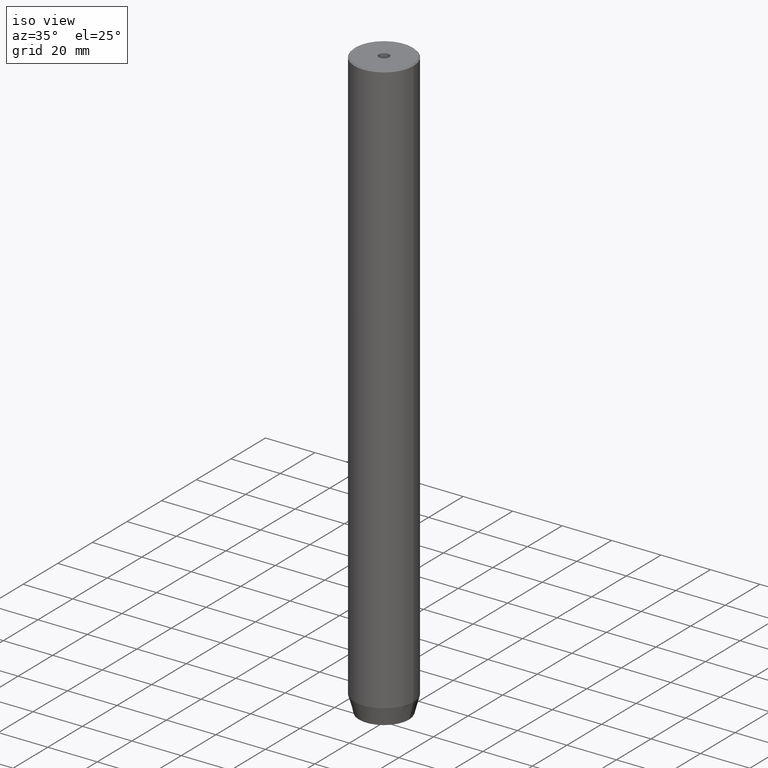
[diagram: clean part render]
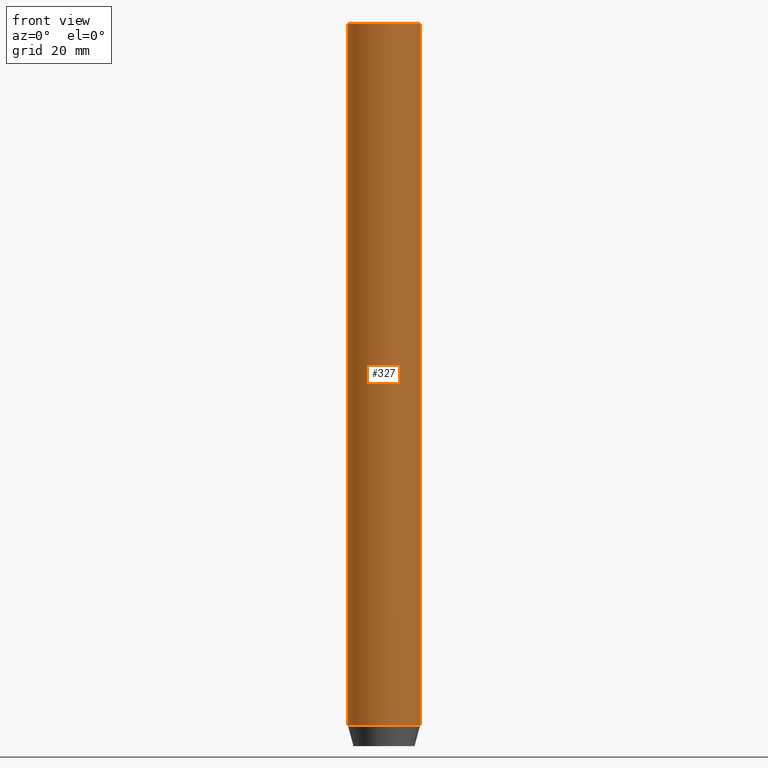
[diagram: tour spotlight — one face highlighted and labeled with its STEP entity id]
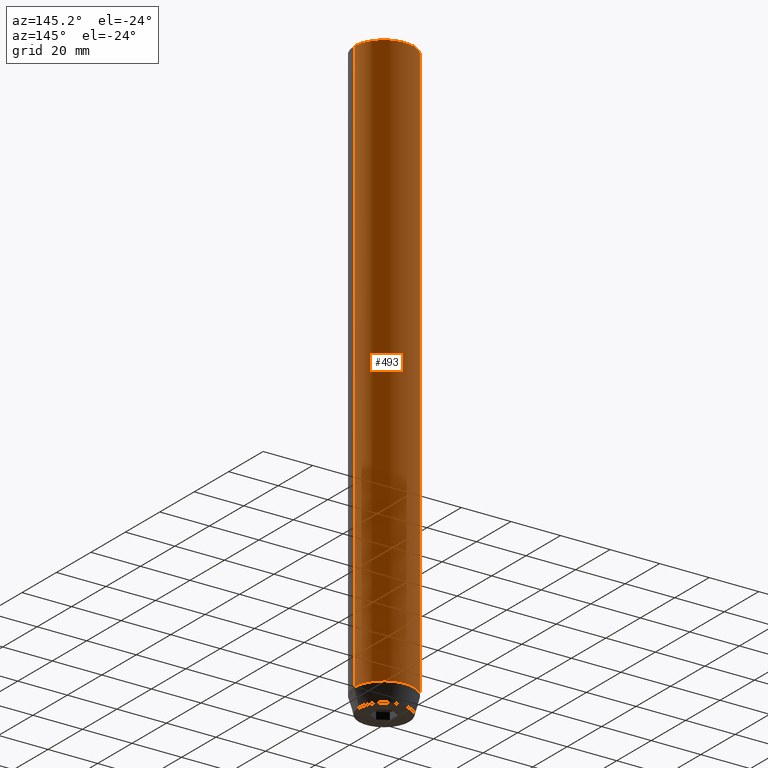
[diagram: tour spotlight — one face highlighted and labeled with its STEP entity id]
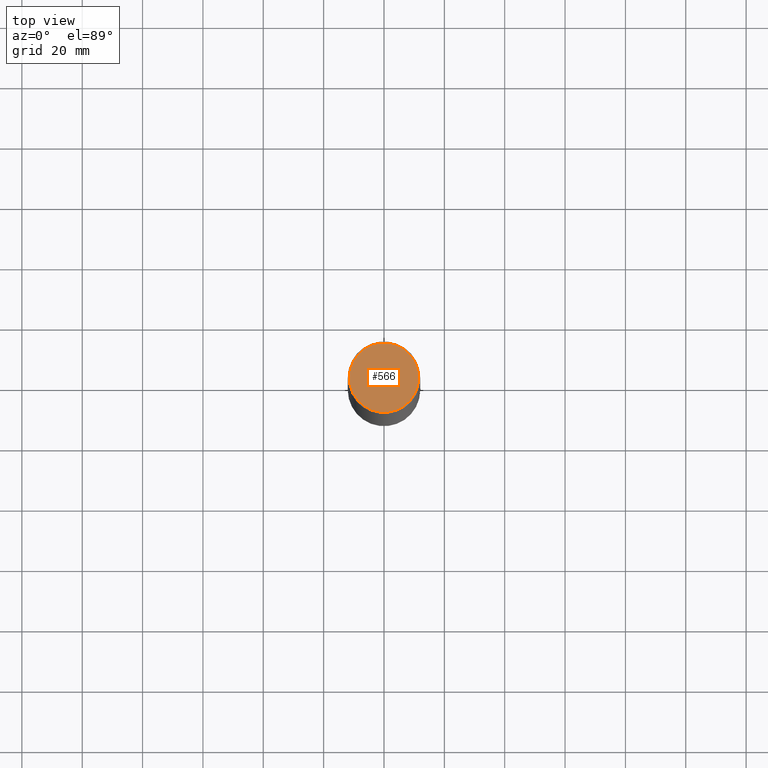
[diagram: tour spotlight — one face highlighted and labeled with its STEP entity id]
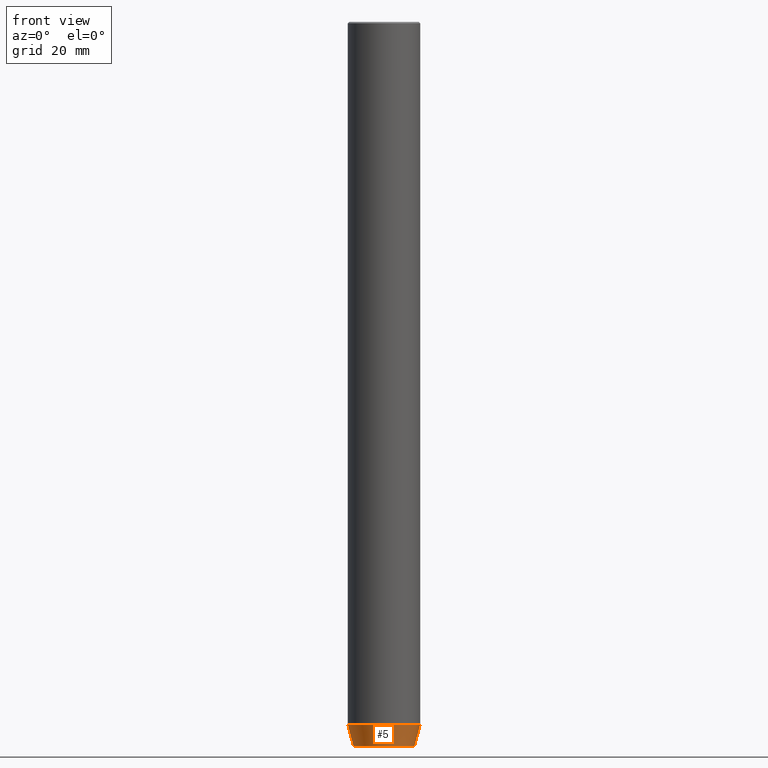
[diagram: tour spotlight — one face highlighted and labeled with its STEP entity id]
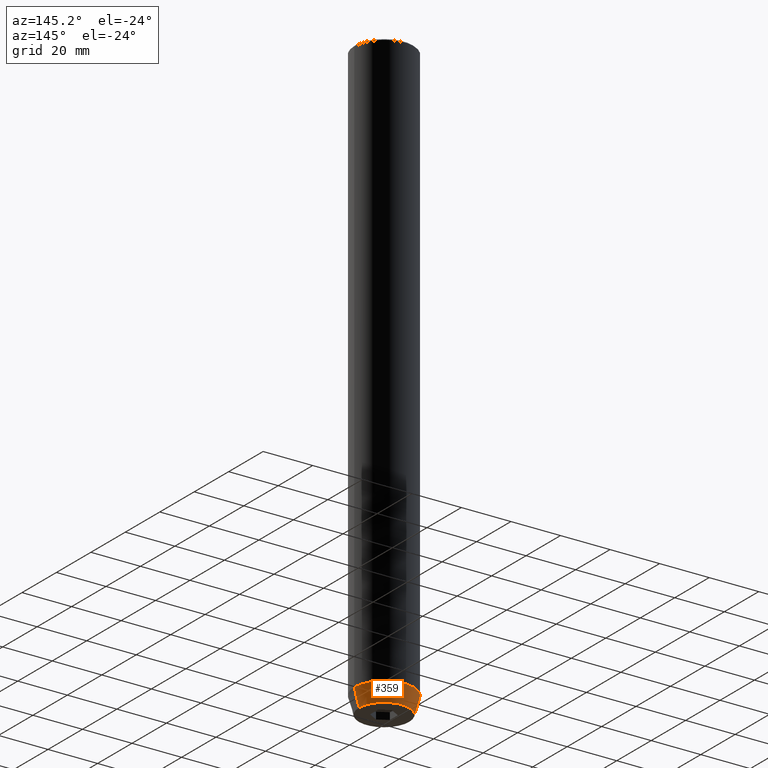
[diagram: tour spotlight — one face highlighted and labeled with its STEP entity id]
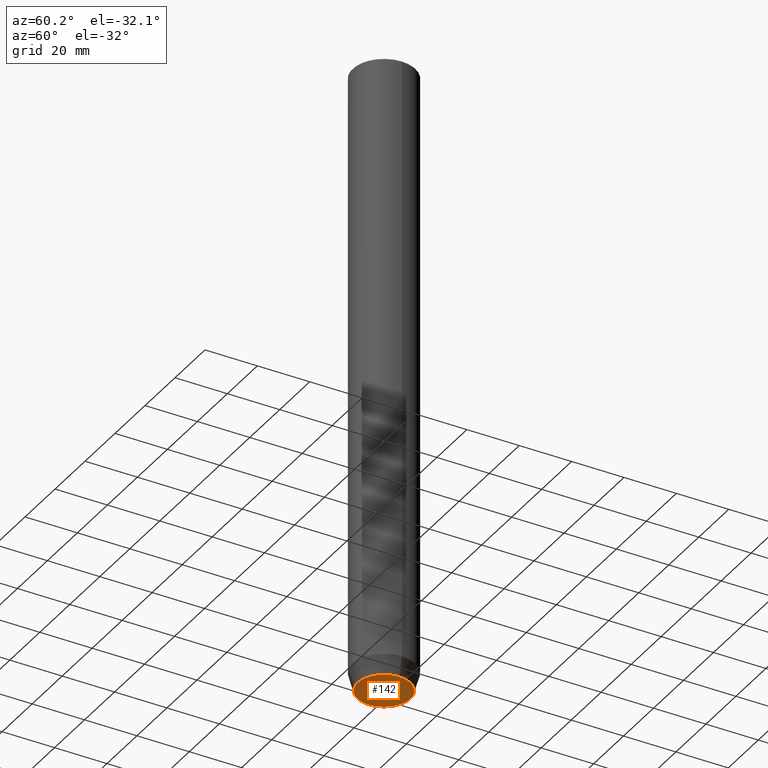
[diagram: tour spotlight — one face highlighted and labeled with its STEP entity id]
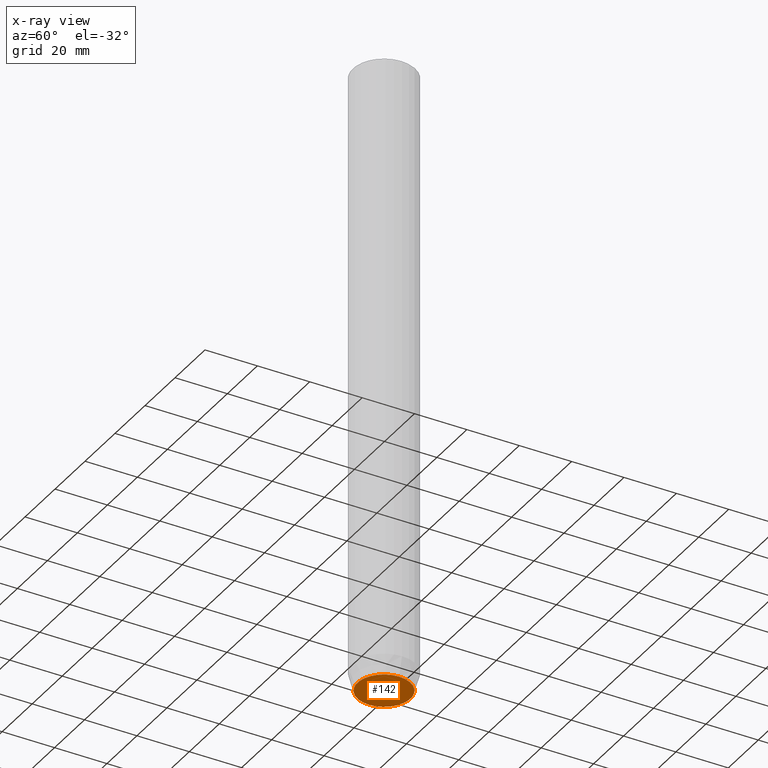
[diagram: x-ray of the same camera — body ghosted, this tour face saturated]
A machine part: a face-by-face anatomy tour. The part has 19 B-rep faces; the first image is the clean iso view, then the 6 largest visible faces are spotlighted one at a time (largest first), each with its STEP entity span.

Face 1 — front view, entity #327. In plain terms, the highlighted cylindrical surface (edge-blend (fillet) strip) has radius 12 mm, axis along (-0, -0, 1).
Definition (entity closure, byte-faithful):
#4 = ORIENTED_EDGE ( 'NONE', *, *, #515, .T. ) ;
#28 = LINE ( 'NONE', #341, #77 ) ;
#38 = CARTESIAN_POINT ( 'NONE',  ( -12.00000000000000000, 1.469576158976823947E-15, -232.9999999999999716 ) ) ;
#50 = EDGE_CURVE ( 'NONE', #273, #210, #28, .T. ) ;
#71 = LINE ( 'NONE', #262, #384 ) ;
#77 = VECTOR ( 'NONE', #293, 1000.000000000000000 ) ;
#80 = DIRECTION ( 'NONE',  ( 1.000000000000000000, 0.000000000000000000, 0.000000000000000000 ) ) ;
#106 = CIRCLE ( 'NONE', #568, 12.00000000000000000 ) ;
#172 = ORIENTED_EDGE ( 'NONE', *, *, #282, .F. ) ;
#210 = VERTEX_POINT ( 'NONE', #216 ) ;
#216 = CARTESIAN_POINT ( 'NONE',  ( 12.00000000000000000, 0.000000000000000000, -0.4999999999999779066 ) ) ;
#230 = ORIENTED_EDGE ( 'NONE', *, *, #559, .T. ) ;
#249 = VERTEX_POINT ( 'NONE', #38 ) ;
#262 = CARTESIAN_POINT ( 'NONE',  ( -12.00000000000000000, 1.469576158976823947E-15, 0.000000000000000000 ) ) ;
#272 = CARTESIAN_POINT ( 'NONE',  ( -12.00000000000000000, 1.469576158976823947E-15, -0.4999999999999779066 ) ) ;
#273 = VERTEX_POINT ( 'NONE', #530 ) ;
#274 = CARTESIAN_POINT ( 'NONE',  ( 0.000000000000000000, 0.000000000000000000, -0.4999999999999779066 ) ) ;
#282 = EDGE_CURVE ( 'NONE', #249, #475, #71, .T. ) ;
#288 = ORIENTED_EDGE ( 'NONE', *, *, #50, .T. ) ;
#293 = DIRECTION ( 'NONE',  ( -0.000000000000000000, -0.000000000000000000, 1.000000000000000000 ) ) ;
#298 = CARTESIAN_POINT ( 'NONE',  ( 0.000000000000000000, 0.000000000000000000, -232.9999999999999716 ) ) ;
#301 = AXIS2_PLACEMENT_3D ( 'NONE', #298, #314, #80 ) ;
#304 = DIRECTION ( 'NONE',  ( 1.000000000000000000, 0.000000000000000000, 0.000000000000000000 ) ) ;
#314 = DIRECTION ( 'NONE',  ( -0.000000000000000000, -0.000000000000000000, 1.000000000000000000 ) ) ;
#327 = ADVANCED_FACE ( 'NONE', ( #546 ), #390, .T. ) ;
#332 = EDGE_LOOP ( 'NONE', ( #172, #230, #288, #4 ) ) ;
#341 = CARTESIAN_POINT ( 'NONE',  ( 12.00000000000000000, 0.000000000000000000, 0.000000000000000000 ) ) ;
#357 = DIRECTION ( 'NONE',  ( 0.000000000000000000, 0.000000000000000000, -1.000000000000000000 ) ) ;
#384 = VECTOR ( 'NONE', #400, 1000.000000000000000 ) ;
#385 = CIRCLE ( 'NONE', #301, 12.00000000000000000 ) ;
#390 = CYLINDRICAL_SURFACE ( 'NONE', #460, 12.00000000000000000 ) ;
#400 = DIRECTION ( 'NONE',  ( -0.000000000000000000, -0.000000000000000000, 1.000000000000000000 ) ) ;
#460 = AXIS2_PLACEMENT_3D ( 'NONE', #532, #539, #304 ) ;
#475 = VERTEX_POINT ( 'NONE', #272 ) ;
#484 = DIRECTION ( 'NONE',  ( 1.000000000000000000, 0.000000000000000000, 0.000000000000000000 ) ) ;
#515 = EDGE_CURVE ( 'NONE', #210, #475, #106, .T. ) ;
#530 = CARTESIAN_POINT ( 'NONE',  ( 12.00000000000000000, 0.000000000000000000, -232.9999999999999716 ) ) ;
#532 = CARTESIAN_POINT ( 'NONE',  ( 0.000000000000000000, 0.000000000000000000, 0.000000000000000000 ) ) ;
#539 = DIRECTION ( 'NONE',  ( -0.000000000000000000, -0.000000000000000000, 1.000000000000000000 ) ) ;
#546 = FACE_OUTER_BOUND ( 'NONE', #332, .T. ) ;
#559 = EDGE_CURVE ( 'NONE', #249, #273, #385, .T. ) ;
#568 = AXIS2_PLACEMENT_3D ( 'NONE', #274, #357, #484 ) ;

Face 2 — auxiliary view, entity #493. In plain terms, the highlighted cylindrical surface (edge-blend (fillet) strip) has radius 12 mm, axis along (-0, -0, 1).
Definition (entity closure, byte-faithful):
#6 = DIRECTION ( 'NONE',  ( 1.000000000000000000, 0.000000000000000000, 0.000000000000000000 ) ) ;
#28 = LINE ( 'NONE', #341, #77 ) ;
#38 = CARTESIAN_POINT ( 'NONE',  ( -12.00000000000000000, 1.469576158976823947E-15, -232.9999999999999716 ) ) ;
#41 = AXIS2_PLACEMENT_3D ( 'NONE', #88, #232, #187 ) ;
#47 = CIRCLE ( 'NONE', #300, 12.00000000000000000 ) ;
#50 = EDGE_CURVE ( 'NONE', #273, #210, #28, .T. ) ;
#58 = ORIENTED_EDGE ( 'NONE', *, *, #282, .T. ) ;
#66 = EDGE_CURVE ( 'NONE', #273, #249, #303, .T. ) ;
#71 = LINE ( 'NONE', #262, #384 ) ;
#77 = VECTOR ( 'NONE', #293, 1000.000000000000000 ) ;
#88 = CARTESIAN_POINT ( 'NONE',  ( 0.000000000000000000, 0.000000000000000000, 0.000000000000000000 ) ) ;
#112 = ORIENTED_EDGE ( 'NONE', *, *, #50, .F. ) ;
#115 = DIRECTION ( 'NONE',  ( -0.000000000000000000, -0.000000000000000000, 1.000000000000000000 ) ) ;
#129 = CYLINDRICAL_SURFACE ( 'NONE', #41, 12.00000000000000000 ) ;
#157 = EDGE_LOOP ( 'NONE', ( #544, #58, #167, #112 ) ) ;
#167 = ORIENTED_EDGE ( 'NONE', *, *, #409, .T. ) ;
#186 = CARTESIAN_POINT ( 'NONE',  ( 0.000000000000000000, 0.000000000000000000, -0.4999999999999779066 ) ) ;
#187 = DIRECTION ( 'NONE',  ( 1.000000000000000000, 0.000000000000000000, 0.000000000000000000 ) ) ;
#210 = VERTEX_POINT ( 'NONE', #216 ) ;
#216 = CARTESIAN_POINT ( 'NONE',  ( 12.00000000000000000, 0.000000000000000000, -0.4999999999999779066 ) ) ;
#224 = DIRECTION ( 'NONE',  ( 1.000000000000000000, 0.000000000000000000, 0.000000000000000000 ) ) ;
#232 = DIRECTION ( 'NONE',  ( -0.000000000000000000, -0.000000000000000000, 1.000000000000000000 ) ) ;
#249 = VERTEX_POINT ( 'NONE', #38 ) ;
#262 = CARTESIAN_POINT ( 'NONE',  ( -12.00000000000000000, 1.469576158976823947E-15, 0.000000000000000000 ) ) ;
#272 = CARTESIAN_POINT ( 'NONE',  ( -12.00000000000000000, 1.469576158976823947E-15, -0.4999999999999779066 ) ) ;
#273 = VERTEX_POINT ( 'NONE', #530 ) ;
#282 = EDGE_CURVE ( 'NONE', #249, #475, #71, .T. ) ;
#293 = DIRECTION ( 'NONE',  ( -0.000000000000000000, -0.000000000000000000, 1.000000000000000000 ) ) ;
#300 = AXIS2_PLACEMENT_3D ( 'NONE', #186, #311, #6 ) ;
#303 = CIRCLE ( 'NONE', #538, 12.00000000000000000 ) ;
#311 = DIRECTION ( 'NONE',  ( 0.000000000000000000, 0.000000000000000000, -1.000000000000000000 ) ) ;
#341 = CARTESIAN_POINT ( 'NONE',  ( 12.00000000000000000, 0.000000000000000000, 0.000000000000000000 ) ) ;
#384 = VECTOR ( 'NONE', #400, 1000.000000000000000 ) ;
#400 = DIRECTION ( 'NONE',  ( -0.000000000000000000, -0.000000000000000000, 1.000000000000000000 ) ) ;
#409 = EDGE_CURVE ( 'NONE', #475, #210, #47, .T. ) ;
#475 = VERTEX_POINT ( 'NONE', #272 ) ;
#493 = ADVANCED_FACE ( 'NONE', ( #585 ), #129, .T. ) ;
#529 = CARTESIAN_POINT ( 'NONE',  ( 0.000000000000000000, 0.000000000000000000, -232.9999999999999716 ) ) ;
#530 = CARTESIAN_POINT ( 'NONE',  ( 12.00000000000000000, 0.000000000000000000, -232.9999999999999716 ) ) ;
#538 = AXIS2_PLACEMENT_3D ( 'NONE', #529, #115, #224 ) ;
#544 = ORIENTED_EDGE ( 'NONE', *, *, #66, .T. ) ;
#585 = FACE_OUTER_BOUND ( 'NONE', #157, .T. ) ;

Face 3 — top view, entity #566. In plain terms, the highlighted planar face has unit normal (0, -0, 1).
Definition (entity closure, byte-faithful):
#1 = DIRECTION ( 'NONE',  ( 1.000000000000000000, 0.000000000000000000, 0.000000000000000000 ) ) ;
#22 = ORIENTED_EDGE ( 'NONE', *, *, #466, .T. ) ;
#24 = ORIENTED_EDGE ( 'NONE', *, *, #542, .F. ) ;
#31 = DIRECTION ( 'NONE',  ( 0.000000000000000000, -0.000000000000000000, 1.000000000000000000 ) ) ;
#35 = DIRECTION ( 'NONE',  ( -0.000000000000000000, -0.000000000000000000, 1.000000000000000000 ) ) ;
#43 = CARTESIAN_POINT ( 'NONE',  ( 0.000000000000000000, 0.000000000000000000, -1.990051048614449116E-16 ) ) ;
#83 = CARTESIAN_POINT ( 'NONE',  ( 0.000000000000000000, 0.000000000000000000, 0.000000000000000000 ) ) ;
#107 = AXIS2_PLACEMENT_3D ( 'NONE', #43, #404, #180 ) ;
#119 = CIRCLE ( 'NONE', #535, 11.50000000000000888 ) ;
#120 = CARTESIAN_POINT ( 'NONE',  ( 0.000000000000000000, 0.000000000000000000, 0.000000000000000000 ) ) ;
#122 = DIRECTION ( 'NONE',  ( -0.000000000000000000, -0.000000000000000000, 1.000000000000000000 ) ) ;
#131 = DIRECTION ( 'NONE',  ( -0.000000000000000000, -0.000000000000000000, 1.000000000000000000 ) ) ;
#150 = VERTEX_POINT ( 'NONE', #527 ) ;
#154 = AXIS2_PLACEMENT_3D ( 'NONE', #83, #31, #478 ) ;
#171 = DIRECTION ( 'NONE',  ( 1.000000000000000000, 0.000000000000000000, 0.000000000000000000 ) ) ;
#179 = AXIS2_PLACEMENT_3D ( 'NONE', #120, #35, #171 ) ;
#180 = DIRECTION ( 'NONE',  ( 1.000000000000000000, 0.000000000000000000, 0.000000000000000000 ) ) ;
#188 = VERTEX_POINT ( 'NONE', #392 ) ;
#189 = CARTESIAN_POINT ( 'NONE',  ( 0.000000000000000000, 0.000000000000000000, -1.990051048614449116E-16 ) ) ;
#202 = EDGE_LOOP ( 'NONE', ( #485, #24 ) ) ;
#204 = CIRCLE ( 'NONE', #179, 11.50000000000000888 ) ;
#212 = EDGE_LOOP ( 'NONE', ( #22, #265 ) ) ;
#223 = CARTESIAN_POINT ( 'NONE',  ( 0.000000000000000000, 0.000000000000000000, 0.000000000000000000 ) ) ;
#226 = AXIS2_PLACEMENT_3D ( 'NONE', #189, #131, #446 ) ;
#229 = FACE_BOUND ( 'NONE', #202, .T. ) ;
#233 = CARTESIAN_POINT ( 'NONE',  ( 11.50000000000000888, 1.438959988998140752E-15, 0.000000000000000000 ) ) ;
#245 = EDGE_CURVE ( 'NONE', #362, #150, #204, .T. ) ;
#265 = ORIENTED_EDGE ( 'NONE', *, *, #245, .T. ) ;
#362 = VERTEX_POINT ( 'NONE', #233 ) ;
#392 = CARTESIAN_POINT ( 'NONE',  ( -2.099999999999998757, 2.571758278209440478E-16, -1.990051048614449116E-16 ) ) ;
#395 = PLANE ( 'NONE',  #154 ) ;
#404 = DIRECTION ( 'NONE',  ( -0.000000000000000000, -0.000000000000000000, 1.000000000000000000 ) ) ;
#423 = EDGE_CURVE ( 'NONE', #430, #188, #468, .T. ) ;
#430 = VERTEX_POINT ( 'NONE', #536 ) ;
#446 = DIRECTION ( 'NONE',  ( 1.000000000000000000, 0.000000000000000000, 0.000000000000000000 ) ) ;
#466 = EDGE_CURVE ( 'NONE', #150, #362, #119, .T. ) ;
#468 = CIRCLE ( 'NONE', #226, 2.099999999999998757 ) ;
#478 = DIRECTION ( 'NONE',  ( 1.000000000000000000, 0.000000000000000000, 0.000000000000000000 ) ) ;
#485 = ORIENTED_EDGE ( 'NONE', *, *, #423, .F. ) ;
#500 = FACE_OUTER_BOUND ( 'NONE', #212, .T. ) ;
#525 = CIRCLE ( 'NONE', #107, 2.099999999999998757 ) ;
#527 = CARTESIAN_POINT ( 'NONE',  ( -11.50000000000000888, 0.000000000000000000, 0.000000000000000000 ) ) ;
#535 = AXIS2_PLACEMENT_3D ( 'NONE', #223, #122, #1 ) ;
#536 = CARTESIAN_POINT ( 'NONE',  ( 2.099999999999998757, 0.000000000000000000, -1.990051048614449116E-16 ) ) ;
#542 = EDGE_CURVE ( 'NONE', #188, #430, #525, .T. ) ;
#566 = ADVANCED_FACE ( 'NONE', ( #229, #500 ), #395, .T. ) ;

Face 4 — front view, entity #5. In plain terms, the highlighted conical surface has half-angle 15 deg.
Definition (entity closure, byte-faithful):
#5 = ADVANCED_FACE ( 'NONE', ( #173 ), #56, .T. ) ;
#29 = VECTOR ( 'NONE', #287, 1000.000000000000000 ) ;
#37 = VERTEX_POINT ( 'NONE', #302 ) ;
#38 = CARTESIAN_POINT ( 'NONE',  ( -12.00000000000000000, 1.469576158976823947E-15, -232.9999999999999716 ) ) ;
#56 = CONICAL_SURFACE ( 'NONE', #331, 12.00000000000000000, 0.2617993877991500740 ) ;
#61 = CARTESIAN_POINT ( 'NONE',  ( -12.00000000000000000, 1.469576158976823947E-15, -232.9999999999999716 ) ) ;
#63 = VERTEX_POINT ( 'NONE', #125 ) ;
#80 = DIRECTION ( 'NONE',  ( 1.000000000000000000, 0.000000000000000000, 0.000000000000000000 ) ) ;
#102 = LINE ( 'NONE', #128, #429 ) ;
#125 = CARTESIAN_POINT ( 'NONE',  ( 10.12435565298213547, 0.000000000000000000, -240.0000000000000000 ) ) ;
#128 = CARTESIAN_POINT ( 'NONE',  ( 12.00000000000000000, 0.000000000000000000, -232.9999999999999716 ) ) ;
#141 = CARTESIAN_POINT ( 'NONE',  ( 0.000000000000000000, 0.000000000000000000, -240.0000000000000000 ) ) ;
#153 = AXIS2_PLACEMENT_3D ( 'NONE', #141, #448, #198 ) ;
#160 = LINE ( 'NONE', #61, #29 ) ;
#173 = FACE_OUTER_BOUND ( 'NONE', #299, .T. ) ;
#198 = DIRECTION ( 'NONE',  ( 1.000000000000000000, 0.000000000000000000, 0.000000000000000000 ) ) ;
#207 = EDGE_CURVE ( 'NONE', #37, #249, #160, .T. ) ;
#218 = CIRCLE ( 'NONE', #153, 10.12435565298213547 ) ;
#225 = EDGE_CURVE ( 'NONE', #63, #273, #102, .T. ) ;
#249 = VERTEX_POINT ( 'NONE', #38 ) ;
#264 = DIRECTION ( 'NONE',  ( 0.2588190451025213501, 0.000000000000000000, 0.9659258262890680902 ) ) ;
#273 = VERTEX_POINT ( 'NONE', #530 ) ;
#287 = DIRECTION ( 'NONE',  ( -0.2588190451025213501, 3.169619151431772337E-17, 0.9659258262890680902 ) ) ;
#298 = CARTESIAN_POINT ( 'NONE',  ( 0.000000000000000000, 0.000000000000000000, -232.9999999999999716 ) ) ;
#299 = EDGE_LOOP ( 'NONE', ( #431, #379, #517, #419 ) ) ;
#301 = AXIS2_PLACEMENT_3D ( 'NONE', #298, #314, #80 ) ;
#302 = CARTESIAN_POINT ( 'NONE',  ( -10.12435565298213547, 1.354726066681111050E-15, -240.0000000000000000 ) ) ;
#314 = DIRECTION ( 'NONE',  ( -0.000000000000000000, -0.000000000000000000, 1.000000000000000000 ) ) ;
#331 = AXIS2_PLACEMENT_3D ( 'NONE', #396, #432, #526 ) ;
#338 = EDGE_CURVE ( 'NONE', #37, #63, #218, .T. ) ;
#379 = ORIENTED_EDGE ( 'NONE', *, *, #338, .T. ) ;
#385 = CIRCLE ( 'NONE', #301, 12.00000000000000000 ) ;
#396 = CARTESIAN_POINT ( 'NONE',  ( 0.000000000000000000, 0.000000000000000000, -232.9999999999999716 ) ) ;
#419 = ORIENTED_EDGE ( 'NONE', *, *, #559, .F. ) ;
#429 = VECTOR ( 'NONE', #264, 1000.000000000000000 ) ;
#431 = ORIENTED_EDGE ( 'NONE', *, *, #207, .F. ) ;
#432 = DIRECTION ( 'NONE',  ( -0.000000000000000000, -0.000000000000000000, 1.000000000000000000 ) ) ;
#448 = DIRECTION ( 'NONE',  ( -0.000000000000000000, -0.000000000000000000, 1.000000000000000000 ) ) ;
#517 = ORIENTED_EDGE ( 'NONE', *, *, #225, .T. ) ;
#526 = DIRECTION ( 'NONE',  ( 1.000000000000000000, 0.000000000000000000, 0.000000000000000000 ) ) ;
#530 = CARTESIAN_POINT ( 'NONE',  ( 12.00000000000000000, 0.000000000000000000, -232.9999999999999716 ) ) ;
#559 = EDGE_CURVE ( 'NONE', #249, #273, #385, .T. ) ;

Face 5 — auxiliary view, entity #359. In plain terms, the highlighted conical surface has half-angle 15 deg.
Definition (entity closure, byte-faithful):
#29 = VECTOR ( 'NONE', #287, 1000.000000000000000 ) ;
#37 = VERTEX_POINT ( 'NONE', #302 ) ;
#38 = CARTESIAN_POINT ( 'NONE',  ( -12.00000000000000000, 1.469576158976823947E-15, -232.9999999999999716 ) ) ;
#39 = DIRECTION ( 'NONE',  ( -0.000000000000000000, -0.000000000000000000, 1.000000000000000000 ) ) ;
#45 = DIRECTION ( 'NONE',  ( 1.000000000000000000, 0.000000000000000000, 0.000000000000000000 ) ) ;
#61 = CARTESIAN_POINT ( 'NONE',  ( -12.00000000000000000, 1.469576158976823947E-15, -232.9999999999999716 ) ) ;
#63 = VERTEX_POINT ( 'NONE', #125 ) ;
#66 = EDGE_CURVE ( 'NONE', #273, #249, #303, .T. ) ;
#86 = CARTESIAN_POINT ( 'NONE',  ( 0.000000000000000000, 0.000000000000000000, -240.0000000000000000 ) ) ;
#102 = LINE ( 'NONE', #128, #429 ) ;
#115 = DIRECTION ( 'NONE',  ( -0.000000000000000000, -0.000000000000000000, 1.000000000000000000 ) ) ;
#116 = ORIENTED_EDGE ( 'NONE', *, *, #225, .F. ) ;
#125 = CARTESIAN_POINT ( 'NONE',  ( 10.12435565298213547, 0.000000000000000000, -240.0000000000000000 ) ) ;
#128 = CARTESIAN_POINT ( 'NONE',  ( 12.00000000000000000, 0.000000000000000000, -232.9999999999999716 ) ) ;
#145 = AXIS2_PLACEMENT_3D ( 'NONE', #412, #324, #45 ) ;
#160 = LINE ( 'NONE', #61, #29 ) ;
#181 = ORIENTED_EDGE ( 'NONE', *, *, #66, .F. ) ;
#203 = EDGE_LOOP ( 'NONE', ( #496, #323, #181, #116 ) ) ;
#207 = EDGE_CURVE ( 'NONE', #37, #249, #160, .T. ) ;
#224 = DIRECTION ( 'NONE',  ( 1.000000000000000000, 0.000000000000000000, 0.000000000000000000 ) ) ;
#225 = EDGE_CURVE ( 'NONE', #63, #273, #102, .T. ) ;
#249 = VERTEX_POINT ( 'NONE', #38 ) ;
#264 = DIRECTION ( 'NONE',  ( 0.2588190451025213501, 0.000000000000000000, 0.9659258262890680902 ) ) ;
#273 = VERTEX_POINT ( 'NONE', #530 ) ;
#287 = DIRECTION ( 'NONE',  ( -0.2588190451025213501, 3.169619151431772337E-17, 0.9659258262890680902 ) ) ;
#302 = CARTESIAN_POINT ( 'NONE',  ( -10.12435565298213547, 1.354726066681111050E-15, -240.0000000000000000 ) ) ;
#303 = CIRCLE ( 'NONE', #538, 12.00000000000000000 ) ;
#305 = DIRECTION ( 'NONE',  ( 1.000000000000000000, 0.000000000000000000, 0.000000000000000000 ) ) ;
#323 = ORIENTED_EDGE ( 'NONE', *, *, #207, .T. ) ;
#324 = DIRECTION ( 'NONE',  ( -0.000000000000000000, -0.000000000000000000, 1.000000000000000000 ) ) ;
#359 = ADVANCED_FACE ( 'NONE', ( #456 ), #524, .T. ) ;
#370 = AXIS2_PLACEMENT_3D ( 'NONE', #86, #39, #305 ) ;
#412 = CARTESIAN_POINT ( 'NONE',  ( 0.000000000000000000, 0.000000000000000000, -232.9999999999999716 ) ) ;
#429 = VECTOR ( 'NONE', #264, 1000.000000000000000 ) ;
#456 = FACE_OUTER_BOUND ( 'NONE', #203, .T. ) ;
#496 = ORIENTED_EDGE ( 'NONE', *, *, #508, .T. ) ;
#508 = EDGE_CURVE ( 'NONE', #63, #37, #557, .T. ) ;
#524 = CONICAL_SURFACE ( 'NONE', #145, 12.00000000000000000, 0.2617993877991500740 ) ;
#529 = CARTESIAN_POINT ( 'NONE',  ( 0.000000000000000000, 0.000000000000000000, -232.9999999999999716 ) ) ;
#530 = CARTESIAN_POINT ( 'NONE',  ( 12.00000000000000000, 0.000000000000000000, -232.9999999999999716 ) ) ;
#538 = AXIS2_PLACEMENT_3D ( 'NONE', #529, #115, #224 ) ;
#557 = CIRCLE ( 'NONE', #370, 10.12435565298213547 ) ;

Face 6 — auxiliary view, entity #142. An x-ray twin of the same camera follows (body ghosted, this face saturated) — the face is partly hidden behind the body. In plain terms, the highlighted planar face has unit normal (0, 0, -1).
Definition (entity closure, byte-faithful):
#11 = VERTEX_POINT ( 'NONE', #81 ) ;
#20 = VECTOR ( 'NONE', #73, 1000.000000000000114 ) ;
#37 = VERTEX_POINT ( 'NONE', #302 ) ;
#39 = DIRECTION ( 'NONE',  ( -0.000000000000000000, -0.000000000000000000, 1.000000000000000000 ) ) ;
#52 = CARTESIAN_POINT ( 'NONE',  ( -4.000000000000000000, 2.309401076758503368, -240.0000000000000000 ) ) ;
#63 = VERTEX_POINT ( 'NONE', #125 ) ;
#69 = ORIENTED_EDGE ( 'NONE', *, *, #551, .F. ) ;
#73 = DIRECTION ( 'NONE',  ( -0.8660254037844384856, 0.5000000000000002220, 0.000000000000000000 ) ) ;
#81 = CARTESIAN_POINT ( 'NONE',  ( -4.000000000000000000, -2.309401076758503368, -240.0000000000000000 ) ) ;
#86 = CARTESIAN_POINT ( 'NONE',  ( 0.000000000000000000, 0.000000000000000000, -240.0000000000000000 ) ) ;
#95 = CARTESIAN_POINT ( 'NONE',  ( 4.000000000000000000, -2.309401076758502480, -240.0000000000000000 ) ) ;
#101 = EDGE_LOOP ( 'NONE', ( #458, #69, #438, #184, #425, #464 ) ) ;
#105 = PLANE ( 'NONE',  #498 ) ;
#125 = CARTESIAN_POINT ( 'NONE',  ( 10.12435565298213547, 0.000000000000000000, -240.0000000000000000 ) ) ;
#127 = DIRECTION ( 'NONE',  ( 0.000000000000000000, 1.000000000000000000, 0.000000000000000000 ) ) ;
#132 = EDGE_CURVE ( 'NONE', #348, #151, #292, .T. ) ;
#134 = CARTESIAN_POINT ( 'NONE',  ( -4.000000000000000000, 0.000000000000000000, -240.0000000000000000 ) ) ;
#141 = CARTESIAN_POINT ( 'NONE',  ( 0.000000000000000000, 0.000000000000000000, -240.0000000000000000 ) ) ;
#142 = ADVANCED_FACE ( 'NONE', ( #164, #522 ), #105, .T. ) ;
#151 = VERTEX_POINT ( 'NONE', #260 ) ;
#153 = AXIS2_PLACEMENT_3D ( 'NONE', #141, #448, #198 ) ;
#164 = FACE_BOUND ( 'NONE', #101, .T. ) ;
#169 = EDGE_CURVE ( 'NONE', #569, #214, #497, .T. ) ;
#184 = ORIENTED_EDGE ( 'NONE', *, *, #132, .F. ) ;
#198 = DIRECTION ( 'NONE',  ( 1.000000000000000000, 0.000000000000000000, 0.000000000000000000 ) ) ;
#200 = VERTEX_POINT ( 'NONE', #52 ) ;
#214 = VERTEX_POINT ( 'NONE', #512 ) ;
#218 = CIRCLE ( 'NONE', #153, 10.12435565298213547 ) ;
#234 = CARTESIAN_POINT ( 'NONE',  ( -2.000000000000000888, -3.464101615137754386, -240.0000000000000000 ) ) ;
#240 = LINE ( 'NONE', #408, #567 ) ;
#253 = EDGE_LOOP ( 'NONE', ( #278, #565 ) ) ;
#260 = CARTESIAN_POINT ( 'NONE',  ( 4.336808689942017736E-16, -4.618802153517006737, -240.0000000000000000 ) ) ;
#278 = ORIENTED_EDGE ( 'NONE', *, *, #508, .F. ) ;
#279 = VECTOR ( 'NONE', #336, 1000.000000000000114 ) ;
#292 = LINE ( 'NONE', #380, #279 ) ;
#302 = CARTESIAN_POINT ( 'NONE',  ( -10.12435565298213547, 1.354726066681111050E-15, -240.0000000000000000 ) ) ;
#305 = DIRECTION ( 'NONE',  ( 1.000000000000000000, 0.000000000000000000, 0.000000000000000000 ) ) ;
#318 = VECTOR ( 'NONE', #504, 1000.000000000000000 ) ;
#336 = DIRECTION ( 'NONE',  ( -0.8660254037844384856, -0.5000000000000002220, 0.000000000000000000 ) ) ;
#338 = EDGE_CURVE ( 'NONE', #37, #63, #218, .T. ) ;
#339 = DIRECTION ( 'NONE',  ( -1.000000000000000000, 0.000000000000000000, -0.000000000000000000 ) ) ;
#348 = VERTEX_POINT ( 'NONE', #95 ) ;
#365 = CARTESIAN_POINT ( 'NONE',  ( 4.000000000000000000, 0.000000000000000000, -240.0000000000000000 ) ) ;
#370 = AXIS2_PLACEMENT_3D ( 'NONE', #86, #39, #305 ) ;
#380 = CARTESIAN_POINT ( 'NONE',  ( 2.000000000000000888, -3.464101615137754386, -240.0000000000000000 ) ) ;
#383 = DIRECTION ( 'NONE',  ( 0.000000000000000000, 0.000000000000000000, -1.000000000000000000 ) ) ;
#401 = LINE ( 'NONE', #234, #20 ) ;
#408 = CARTESIAN_POINT ( 'NONE',  ( -2.000000000000000000, 3.464101615137754830, -240.0000000000000000 ) ) ;
#425 = ORIENTED_EDGE ( 'NONE', *, *, #584, .F. ) ;
#435 = CARTESIAN_POINT ( 'NONE',  ( 0.000000000000000000, 4.618802153517006737, -240.0000000000000000 ) ) ;
#438 = ORIENTED_EDGE ( 'NONE', *, *, #474, .F. ) ;
#448 = DIRECTION ( 'NONE',  ( -0.000000000000000000, -0.000000000000000000, 1.000000000000000000 ) ) ;
#449 = DIRECTION ( 'NONE',  ( 0.8660254037844385966, -0.5000000000000001110, 0.000000000000000000 ) ) ;
#450 = EDGE_CURVE ( 'NONE', #200, #569, #240, .T. ) ;
#458 = ORIENTED_EDGE ( 'NONE', *, *, #450, .F. ) ;
#459 = LINE ( 'NONE', #365, #318 ) ;
#464 = ORIENTED_EDGE ( 'NONE', *, *, #169, .F. ) ;
#471 = CARTESIAN_POINT ( 'NONE',  ( 0.000000000000000000, 10.12435565298213547, -240.0000000000000000 ) ) ;
#474 = EDGE_CURVE ( 'NONE', #151, #11, #401, .T. ) ;
#497 = LINE ( 'NONE', #550, #574 ) ;
#498 = AXIS2_PLACEMENT_3D ( 'NONE', #471, #383, #339 ) ;
#499 = VECTOR ( 'NONE', #127, 1000.000000000000000 ) ;
#504 = DIRECTION ( 'NONE',  ( 0.000000000000000000, -1.000000000000000000, 0.000000000000000000 ) ) ;
#506 = DIRECTION ( 'NONE',  ( 0.8660254037844387076, 0.5000000000000001110, 0.000000000000000000 ) ) ;
#508 = EDGE_CURVE ( 'NONE', #63, #37, #557, .T. ) ;
#512 = CARTESIAN_POINT ( 'NONE',  ( 4.000000000000000000, 2.309401076758503368, -240.0000000000000000 ) ) ;
#522 = FACE_OUTER_BOUND ( 'NONE', #253, .T. ) ;
#547 = LINE ( 'NONE', #134, #499 ) ;
#550 = CARTESIAN_POINT ( 'NONE',  ( 2.000000000000000444, 3.464101615137754386, -240.0000000000000000 ) ) ;
#551 = EDGE_CURVE ( 'NONE', #11, #200, #547, .T. ) ;
#557 = CIRCLE ( 'NONE', #370, 10.12435565298213547 ) ;
#565 = ORIENTED_EDGE ( 'NONE', *, *, #338, .F. ) ;
#567 = VECTOR ( 'NONE', #506, 999.9999999999998863 ) ;
#569 = VERTEX_POINT ( 'NONE', #435 ) ;
#574 = VECTOR ( 'NONE', #449, 1000.000000000000000 ) ;
#584 = EDGE_CURVE ( 'NONE', #214, #348, #459, .T. ) ;